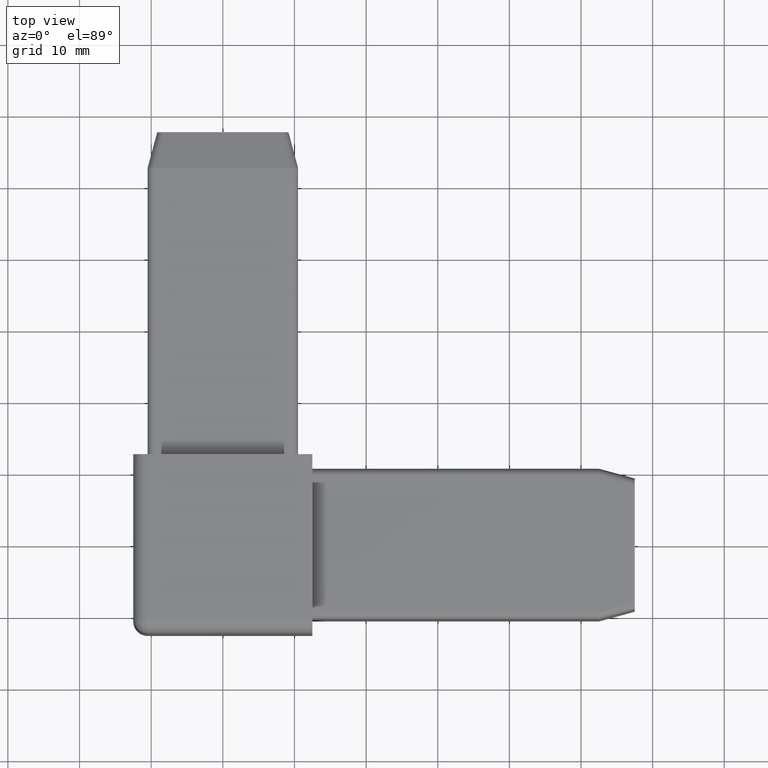
[diagram: clean part render]
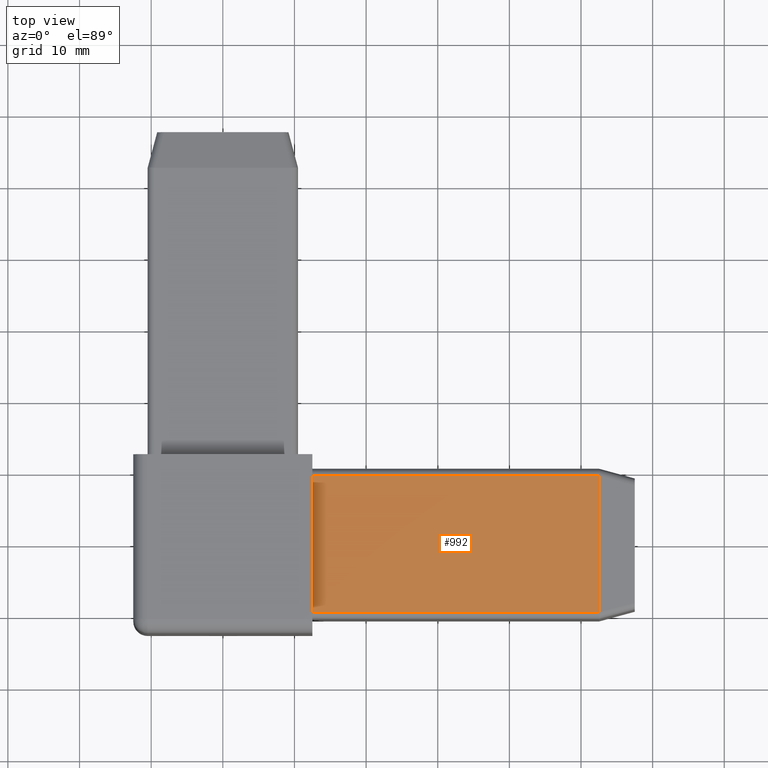
[diagram: same view with one face highlighted and labeled with its STEP entity id]
A machine part, top view. The second image highlights one B-rep face of the part: STEP entity #992.
In plain terms, the highlighted planar face has unit normal (0, 0, 1).
Its self-contained STEP definition (entity closure, byte-faithful):
#127=FACE_OUTER_BOUND('',#184,.T.);
#184=EDGE_LOOP('',(#821,#822,#823,#824));
#275=LINE('',#1641,#370);
#276=LINE('',#1645,#371);
#278=LINE('',#1651,#373);
#279=LINE('',#1652,#374);
#370=VECTOR('',#1330,40.);
#371=VECTOR('',#1335,19.);
#373=VECTOR('',#1341,19.);
#374=VECTOR('',#1342,40.);
#469=VERTEX_POINT('',#1638);
#470=VERTEX_POINT('',#1640);
#471=VERTEX_POINT('',#1644);
#473=VERTEX_POINT('',#1650);
#595=EDGE_CURVE('',#469,#470,#275,.T.);
#597=EDGE_CURVE('',#470,#471,#276,.T.);
#600=EDGE_CURVE('',#473,#469,#278,.T.);
#601=EDGE_CURVE('',#471,#473,#279,.T.);
#821=ORIENTED_EDGE('',*,*,#595,.F.);
#822=ORIENTED_EDGE('',*,*,#600,.F.);
#823=ORIENTED_EDGE('',*,*,#601,.F.);
#824=ORIENTED_EDGE('',*,*,#597,.F.);
#946=PLANE('',#1087);
#992=ADVANCED_FACE('',(#127),#946,.T.);
#1087=AXIS2_PLACEMENT_3D('',#1649,#1339,#1340);
#1330=DIRECTION('',(1.,0.,0.));
#1335=DIRECTION('',(0.,-1.,0.));
#1339=DIRECTION('center_axis',(0.,0.,1.));
#1340=DIRECTION('ref_axis',(0.,-1.,0.));
#1341=DIRECTION('',(0.,1.,0.));
#1342=DIRECTION('',(-1.,0.,0.));
#1638=CARTESIAN_POINT('',(12.5,9.5,23.));
#1640=CARTESIAN_POINT('',(52.5,9.5,23.));
#1641=CARTESIAN_POINT('',(12.5,9.5,23.));
#1644=CARTESIAN_POINT('',(52.5,-9.5,23.));
#1645=CARTESIAN_POINT('',(52.5,5.25,23.));
#1649=CARTESIAN_POINT('Origin',(12.5,10.5,23.));
#1650=CARTESIAN_POINT('',(12.5,-9.5,23.));
#1651=CARTESIAN_POINT('',(12.5,-0.999999999999999,23.));
#1652=CARTESIAN_POINT('',(12.5,-9.5,23.));